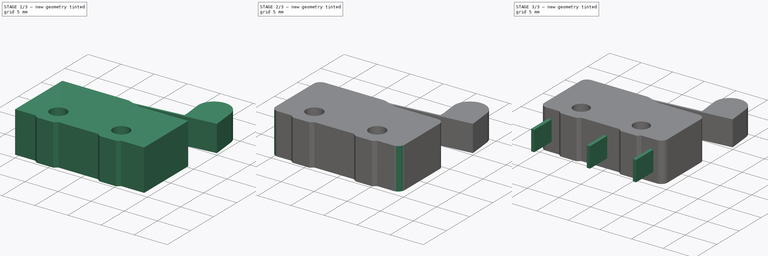
[diagram: build sequence overview — one tinted view per stage of 3, left to right]
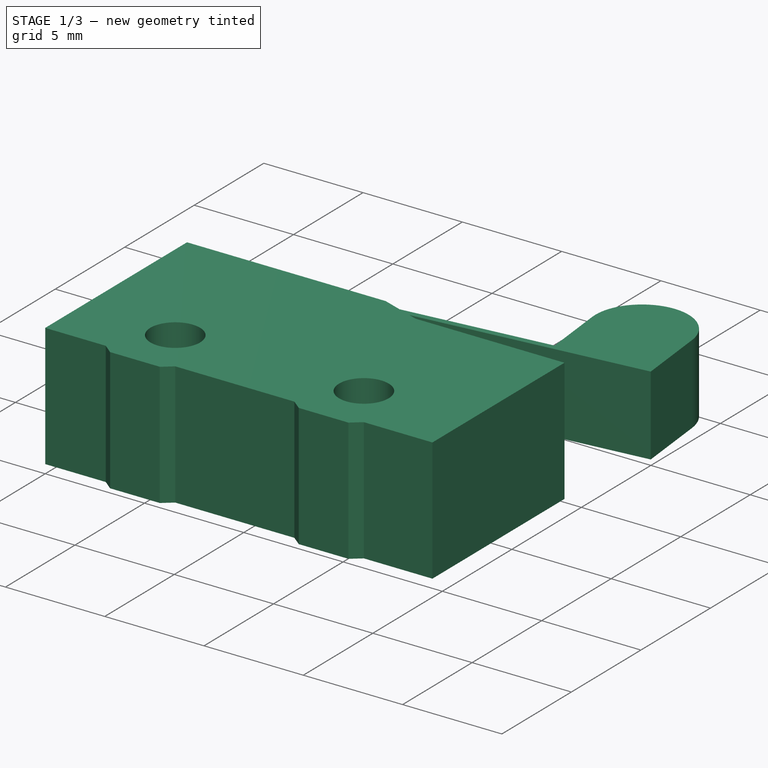
[diagram: stage 1 of 3 — iso view after this stage's code; geometry added in this stage tinted green]
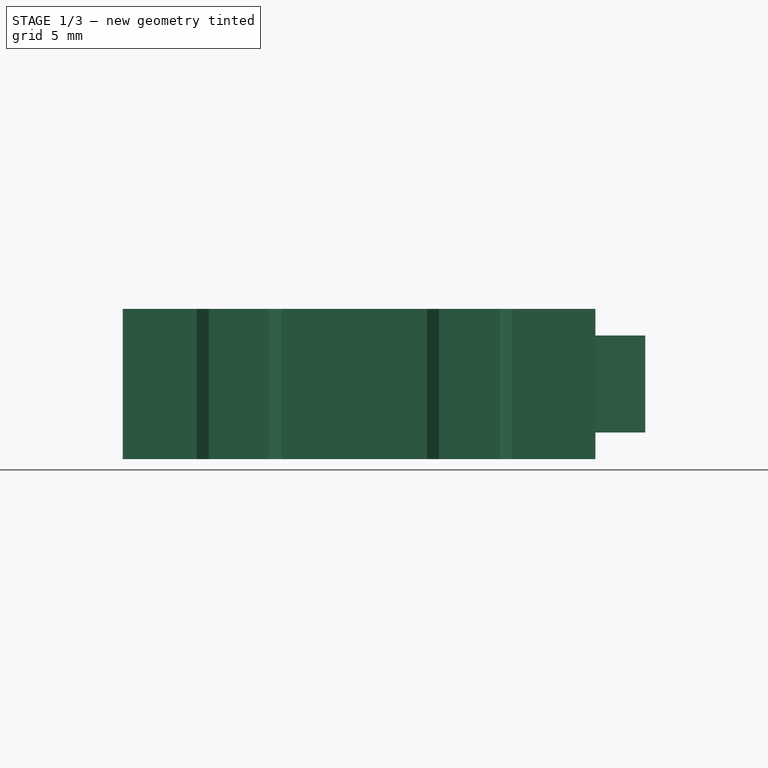
[diagram: stage 1 of 3 — front view after this stage's code; geometry added in this stage tinted green]
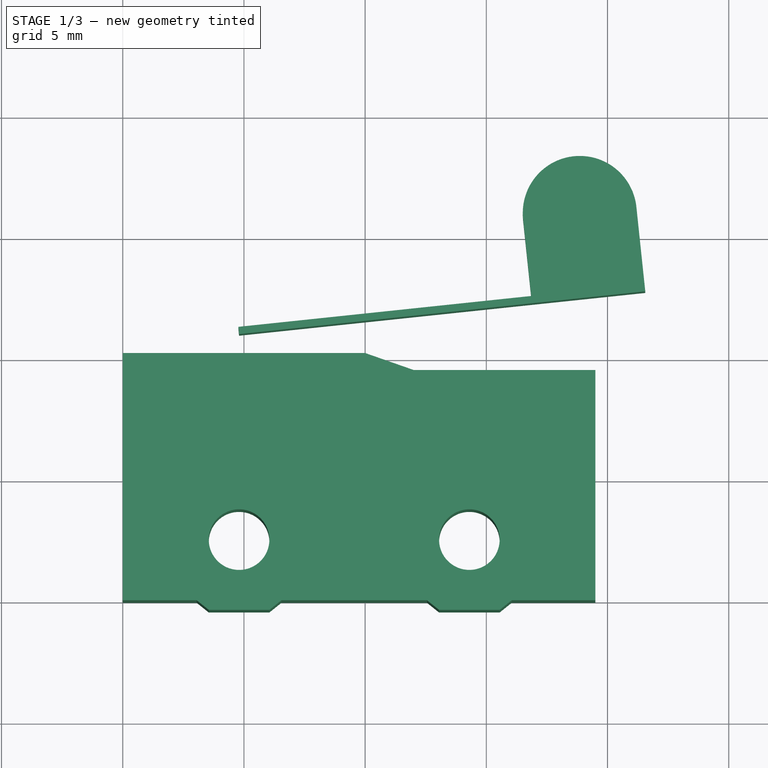
[diagram: stage 1 of 3 — top view after this stage's code; geometry added in this stage tinted green]
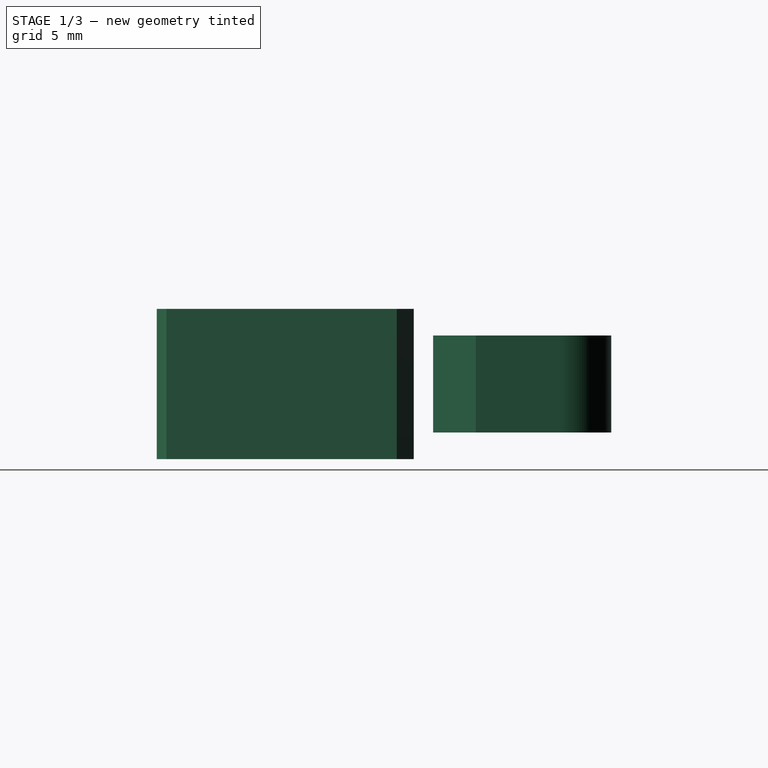
[diagram: stage 1 of 3 — right view after this stage's code; geometry added in this stage tinted green]
FCSTD DOCUMENT  (FreeCAD 0.16R6706 (Git))
Label: switch_SS0505
License: CreativeCommons Attribution-ShareAlike
LicenseURL: http://creativecommons.org/licenses/by-sa/4.0/
objects: Sketcher::SketchObject×3, PartDesign::Pad×3, PartDesign::Fillet×1, Part::MultiFuse×1
note: 11 computed .brp shape members not serialized (recipe doc carries the construction recipe); baked Part::Feature solids carry a one-line shape summary decoded from their .brp

FEATURE [Sketcher::SketchObject] Sketch  label="Sketch-main"
  sketch-geometry (20):
    g0: LineSegment StartX=0 StartY=0 StartZ=0 EndX=3.05 EndY=0 EndZ=0
    g1: LineSegment StartX=3.05 StartY=0 StartZ=0 EndX=3.55 EndY=-0.4 EndZ=0
    g2: LineSegment StartX=3.55 StartY=-0.4 StartZ=0 EndX=6.05 EndY=-0.4 EndZ=0
    g3: LineSegment StartX=6.05 StartY=-0.4 StartZ=0 EndX=6.55 EndY=0 EndZ=0
    g4: LineSegment StartX=6.55 StartY=0 StartZ=0 EndX=12.55 EndY=0 EndZ=0
    g5: LineSegment StartX=12.55 StartY=0 StartZ=0 EndX=13.05 EndY=-0.4 EndZ=0
    g6: LineSegment StartX=13.05 StartY=-0.4 StartZ=0 EndX=15.55 EndY=-0.4 EndZ=0
    g7: LineSegment StartX=15.55 StartY=-0.4 StartZ=0 EndX=16.05 EndY=0 EndZ=0
    g8: LineSegment StartX=16.05 StartY=0 StartZ=0 EndX=19.5 EndY=0 EndZ=0
    g9: LineSegment StartX=19.5 StartY=0 StartZ=0 EndX=19.5 EndY=9.5 EndZ=0
    g10: LineSegment StartX=19.5 StartY=9.5 StartZ=0 EndX=12 EndY=9.5 EndZ=0
    g11: LineSegment StartX=12 StartY=9.5 StartZ=0 EndX=10 EndY=10.2 EndZ=0
    g12: LineSegment StartX=10 StartY=10.2 StartZ=0 EndX=0 EndY=10.2 EndZ=0
    g13: LineSegment StartX=0 StartY=10.2 StartZ=0 EndX=0 EndY=0 EndZ=0
    g14: LineSegment [constr] StartX=14.3 StartY=-0.4 StartZ=0 EndX=14.3 EndY=2.5 EndZ=0
    g15: LineSegment [constr] StartX=4.8 StartY=-0.4 StartZ=0 EndX=4.8 EndY=2.5 EndZ=0
    g16: Circle CenterX=14.3 CenterY=2.5 CenterZ=0 NormalX=0 NormalY=0 NormalZ=1 Radius=1.25
    g17: Circle CenterX=4.8 CenterY=2.5 CenterZ=0 NormalX=0 NormalY=0 NormalZ=1 Radius=1.25
    g18: LineSegment [constr] StartX=12.55 StartY=0 StartZ=0 EndX=16.05 EndY=0 EndZ=0
    g19: LineSegment [constr] StartX=3.05 StartY=0 StartZ=0 EndX=6.55 EndY=0 EndZ=0
  constraints (54):
    c: Coincident(g-1,g0)
    c: PointOnObject(g0,g-1)
    c: Coincident(g0,g1)
    c: Coincident(g1,g2)
    c: Horizontal(g2)
    c: Coincident(g2,g3)
    c: Coincident(g3,g4)
    c: Horizontal(g4)
    c: Coincident(g4,g5)
    c: Coincident(g5,g6)
    c: Horizontal(g6)
    c: Coincident(g6,g7)
    c: Coincident(g7,g8)
    c: Horizontal(g8)
    c: Coincident(g8,g9)
    c: Vertical(g9)
    c: Coincident(g9,g10)
    c: Horizontal(g10)
    c: Coincident(g10,g11)
    c: Coincident(g11,g12)
    c: Horizontal(g12)
    c: Coincident(g12,g13)
    c: Coincident(g13,g0)
    c: Vertical(g13)
    c: DistanceX(g-1,g8) = 19.5
    c: PointOnObject(g8,g-1)
    c: PointOnObject(g2,g6)
    c: Equal(g2,g6)
    c: DistanceY(g-1,g12) = 10.2
    c: DistanceY(g8,g9) = 9.5
    c: PointOnObject(g14,g6)
    c: Symmetric(g5,g6,g14)
    c: PointOnObject(g15,g2)
    c: Symmetric(g2,g1,g15)
    c: Equal(g15,g14)
    c: DistanceY(g15,g15) = 2.9
    c: DistanceY(g0,g15) = 2.5
    c: DistanceX(g15,g14) = 9.5
    c: DistanceX(g14,g8) = 5.2
    c: Symmetric(g0,g3,g15)
    c: Symmetric(g4,g7,g14)
    c: Coincident(g16,g14)
    c: Coincident(g17,g15)
    c: Equal(g17,g16)
    c: Radius(g17) = 1.25
    c: DistanceX(g12,g11) = 10
    c: DistanceX(g10,g9) = 7.5
    c: DistanceX(g5,g6) = 2.5
    c: Coincident(g18,g4)
    c: Coincident(g18,g7)
    c: Coincident(g19,g0)
    c: Coincident(g19,g3)
    c: Equal(g19,g18)
    c: DistanceX(g18,g18) = 3.5
FEATURE [PartDesign::Pad] Pad  label="Pad-main"
  Length = 6.2
  Length2 = 100
  Midplane = true
  Sketch = -> Sketch
  Type = 0
FEATURE [Sketcher::SketchObject] Sketch002
  sketch-geometry (6):
    g0: LineSegment StartX=4.76857 StartY=11.2983 StartZ=0 EndX=16.8517 EndY=12.5714 EndZ=0
    g1: LineSegment StartX=16.8517 StartY=12.5714 StartZ=0 EndX=16.5164 EndY=15.7538 EndZ=0
    g2: ArcOfCircle CenterX=18.8535 CenterY=16 CenterZ=0 NormalX=0 NormalY=0 NormalZ=1 Radius=2.35 StartAngle=0.10497 EndAngle=3.24656
    g3: LineSegment StartX=21.1905 StartY=16.2462 StartZ=0 EndX=21.5573 EndY=12.7655 EndZ=0
    g4: LineSegment StartX=21.5573 StartY=12.7655 StartZ=0 EndX=4.8 EndY=11 EndZ=0
    g5: LineSegment StartX=4.8 StartY=11 StartZ=0 EndX=4.76857 EndY=11.2983 EndZ=0
  constraints (17):
    c: Coincident(g0,g1)
    c: Tangent(g1,g2) = 1.5708
    c: Tangent(g2,g3) = 1.5708
    c: Coincident(g3,g4)
    c: Coincident(g4,g5)
    c: Coincident(g5,g0)
    c: Parallel(g4,g0)
    c: Perpendicular(g4,g5)
    c: Perpendicular(g3,g4)
    c: Perpendicular(g0,g1)
    c: DistanceY(g-1,g4) = 11
    c: Distance(g5) = 0.3
    c: Distance(g2,g4) = 3.5
    c: Radius(g2) = 2.35
    c: Distance(g2,g5) = 14.5
    c: DistanceX(g-1,g4) = 4.8
    c: DistanceY(g-1,g2) = 16
FEATURE [PartDesign::Pad] Pad002
  Length = 4
  Length2 = 100
  Midplane = true
  Sketch = -> Sketch002
  Type = 0
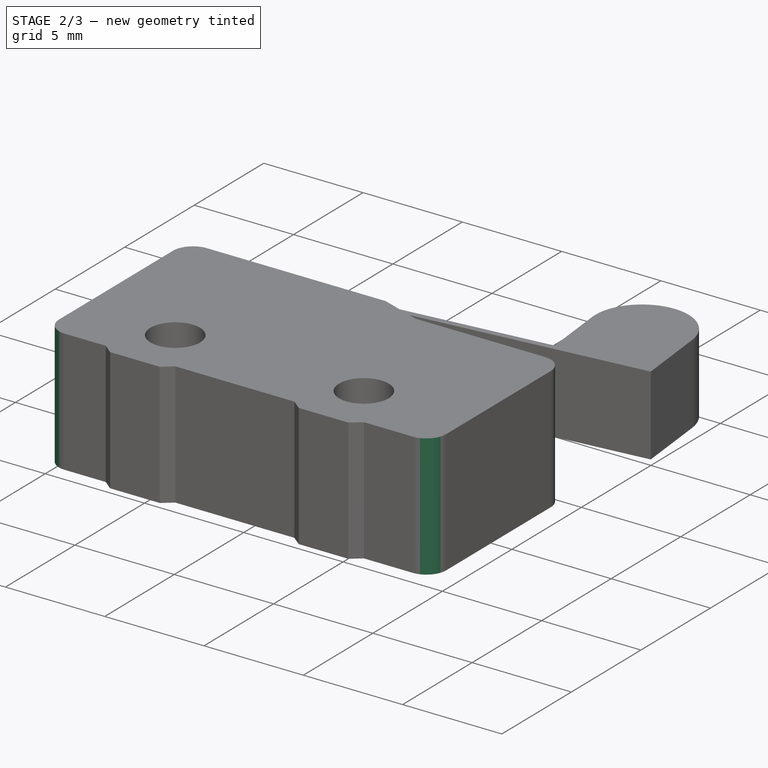
[diagram: stage 2 of 3 — iso view after this stage's code; geometry added in this stage tinted green]
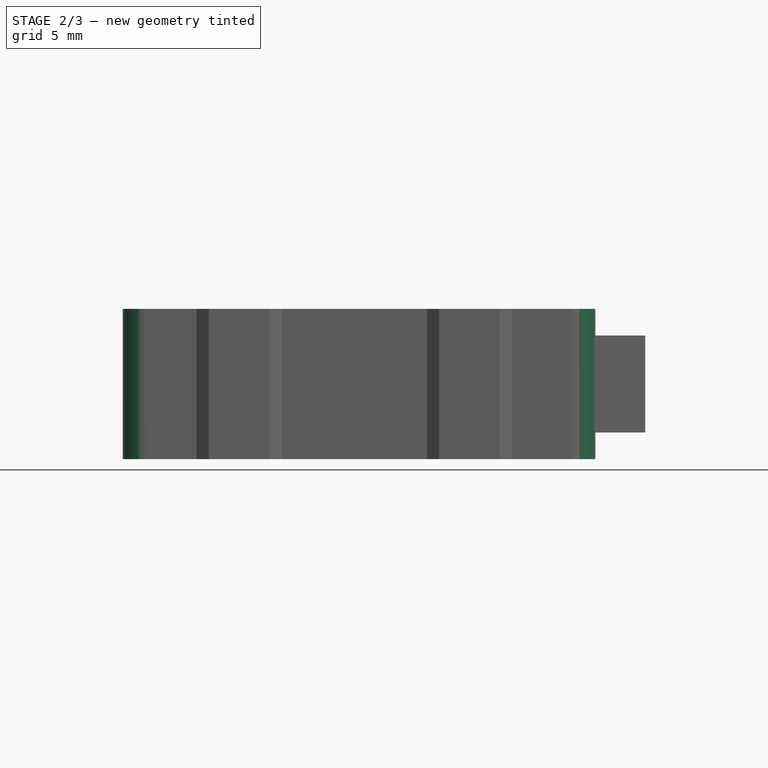
[diagram: stage 2 of 3 — front view after this stage's code; geometry added in this stage tinted green]
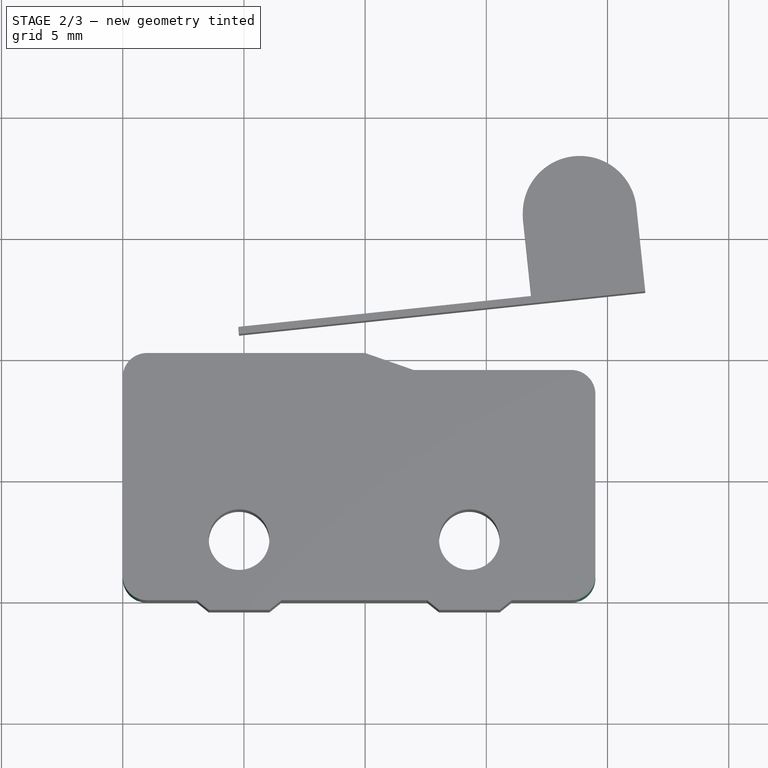
[diagram: stage 2 of 3 — top view after this stage's code; geometry added in this stage tinted green]
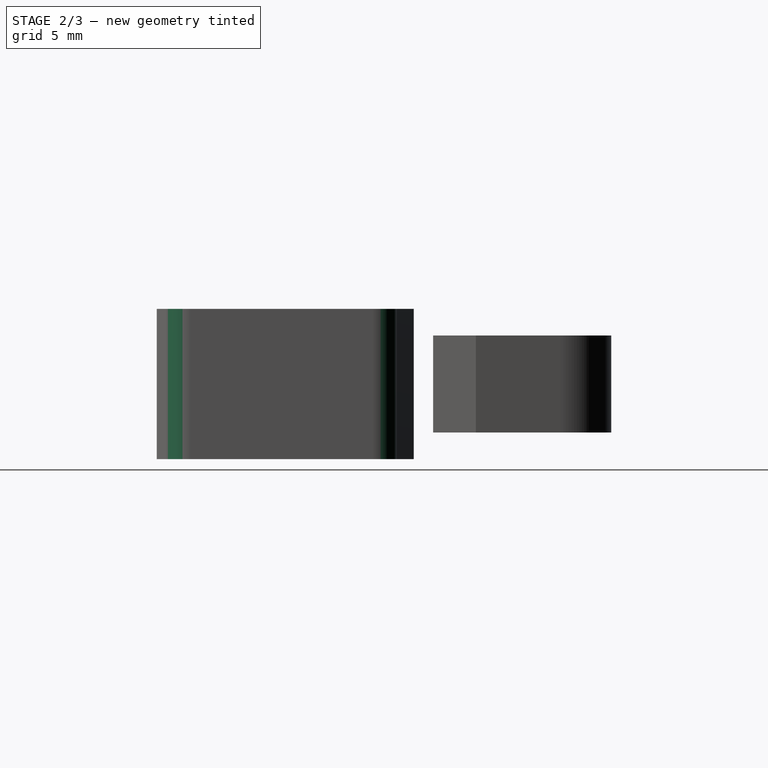
[diagram: stage 2 of 3 — right view after this stage's code; geometry added in this stage tinted green]
FEATURE [PartDesign::Fillet] Fillet
  Base = -> Pad [Edge29,Edge38,Edge1,Edge26]
  Radius = 1
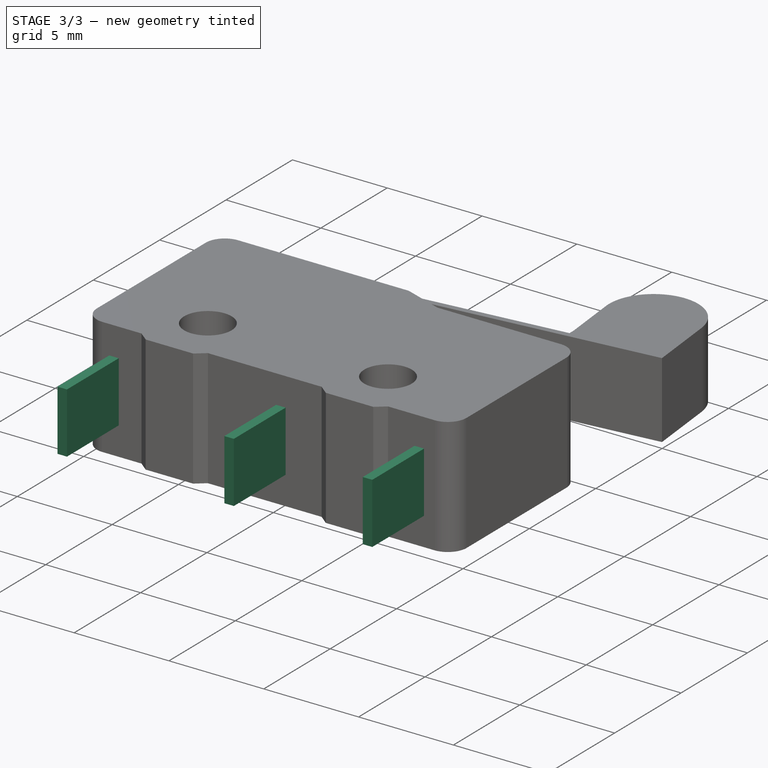
[diagram: stage 3 of 3 — iso view after this stage's code; geometry added in this stage tinted green]
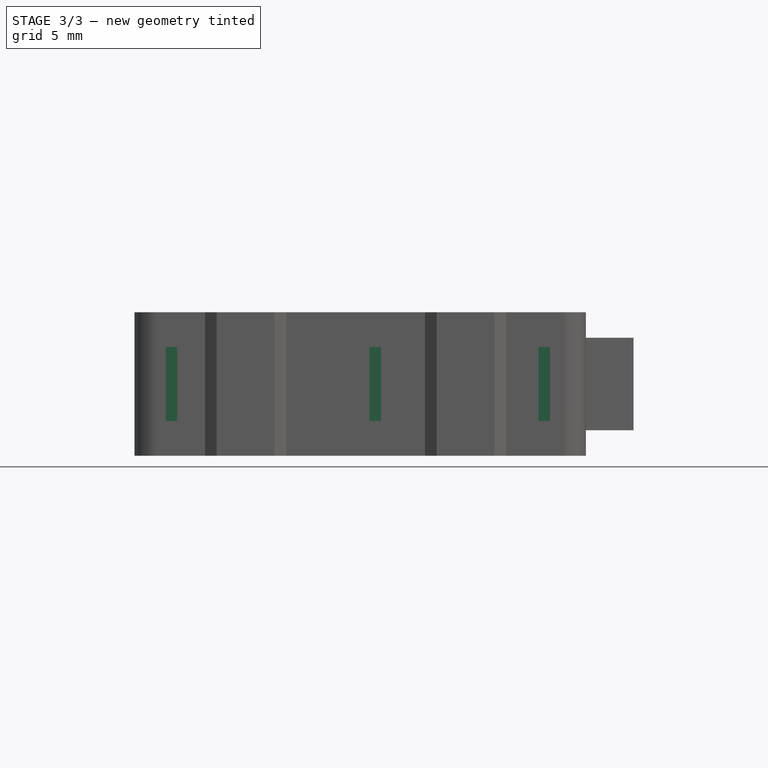
[diagram: stage 3 of 3 — front view after this stage's code; geometry added in this stage tinted green]
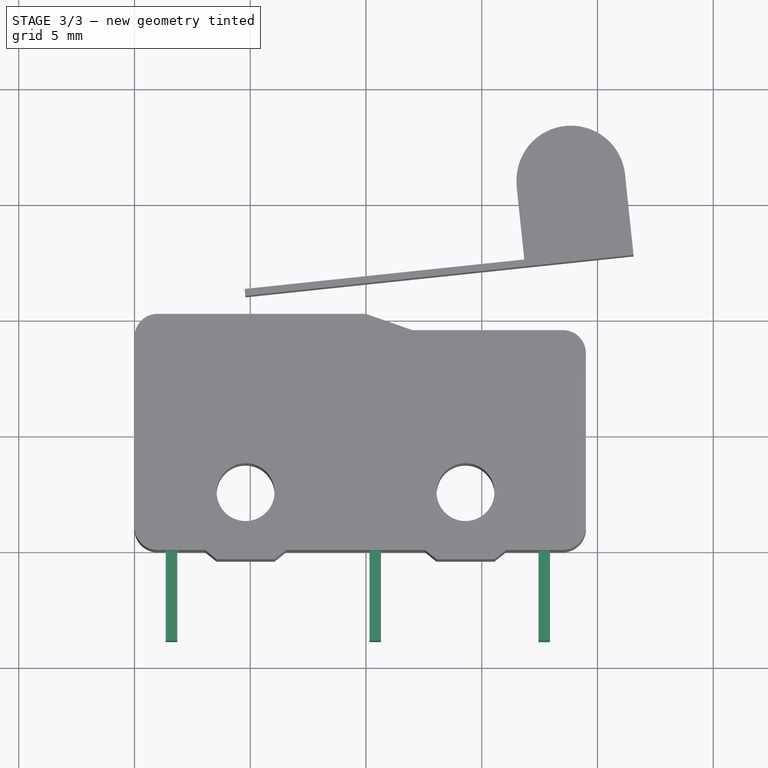
[diagram: stage 3 of 3 — top view after this stage's code; geometry added in this stage tinted green]
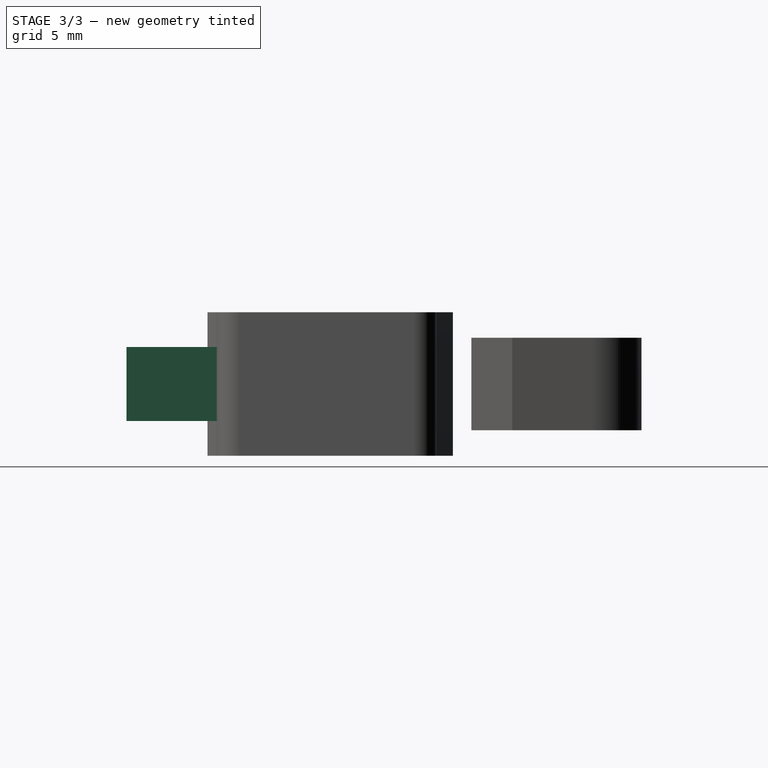
[diagram: stage 3 of 3 — right view after this stage's code; geometry added in this stage tinted green]
FEATURE [Sketcher::SketchObject] Sketch001  label="Sketch-contacts"
  sketch-geometry (12):
    g0: LineSegment StartX=17.45 StartY=0 StartZ=0 EndX=17.95 EndY=0 EndZ=0
    g1: LineSegment StartX=17.95 StartY=0 StartZ=0 EndX=17.95 EndY=-3.9 EndZ=0
    g2: LineSegment StartX=17.95 StartY=-3.9 StartZ=0 EndX=17.45 EndY=-3.9 EndZ=0
    g3: LineSegment StartX=17.45 StartY=-3.9 StartZ=0 EndX=17.45 EndY=0 EndZ=0
    g4: LineSegment StartX=10.15 StartY=0 StartZ=0 EndX=10.65 EndY=0 EndZ=0
    g5: LineSegment StartX=10.65 StartY=0 StartZ=0 EndX=10.65 EndY=-3.9 EndZ=0
    g6: LineSegment StartX=10.65 StartY=-3.9 StartZ=0 EndX=10.15 EndY=-3.9 EndZ=0
    g7: LineSegment StartX=10.15 StartY=-3.9 StartZ=0 EndX=10.15 EndY=0 EndZ=0
    g8: LineSegment StartX=1.35 StartY=0 StartZ=0 EndX=1.85 EndY=0 EndZ=0
    g9: LineSegment StartX=1.85 StartY=0 StartZ=0 EndX=1.85 EndY=-3.9 EndZ=0
    g10: LineSegment StartX=1.85 StartY=-3.9 StartZ=0 EndX=1.35 EndY=-3.9 EndZ=0
    g11: LineSegment StartX=1.35 StartY=-3.9 StartZ=0 EndX=1.35 EndY=0 EndZ=0
  constraints (36):
    c: Coincident(g0,g1)
    c: Coincident(g1,g2)
    c: Coincident(g2,g3)
    c: Coincident(g3,g0)
    c: Horizontal(g0)
    c: Horizontal(g2)
    c: Vertical(g1)
    c: Vertical(g3)
    c: PointOnObject(g0,g-1)
    c: Coincident(g4,g5)
    c: Coincident(g5,g6)
    c: Coincident(g6,g7)
    c: Coincident(g7,g4)
    c: Horizontal(g4)
    c: Horizontal(g6)
    c: Vertical(g5)
    c: Vertical(g7)
    c: PointOnObject(g4,g-1)
    c: Coincident(g8,g9)
    c: Coincident(g9,g10)
    c: Coincident(g10,g11)
    c: Coincident(g11,g8)
    c: Horizontal(g8)
    c: Horizontal(g10)
    c: Vertical(g9)
    c: Vertical(g11)
    c: PointOnObject(g8,g-1)
    c: Equal(g10,g6)
    c: Equal(g6,g2)
    c: Equal(g3,g5)
    c: Equal(g5,g9)
    c: DistanceX(g2,g1) = 0.5
    c: DistanceY(g1,g0) = 3.9
    c: DistanceX(g-1,g9) = 1.85
    c: DistanceX(g9,g5) = 8.8
    c: DistanceX(g5,g1) = 7.3
FEATURE [PartDesign::Pad] Pad001  label="Pad-contacts"
  Length = 3.2
  Length2 = 100
  Midplane = true
  Sketch = -> Sketch001
  Type = 0
FEATURE [Part::MultiFuse] Fusion
  Shapes = -> [Fillet,Pad002,Pad001]
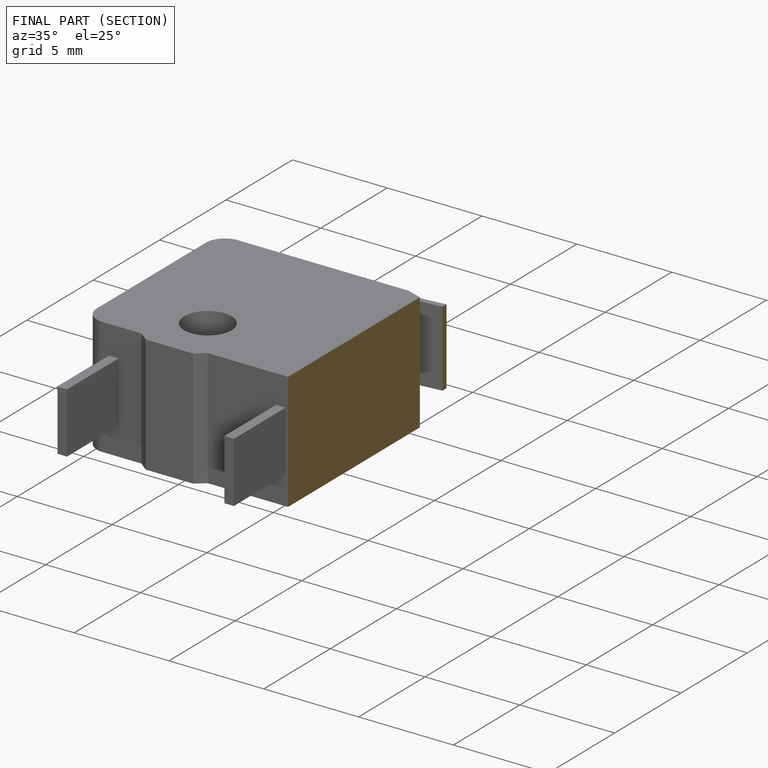
[diagram: finished part — half-section view (interior)]
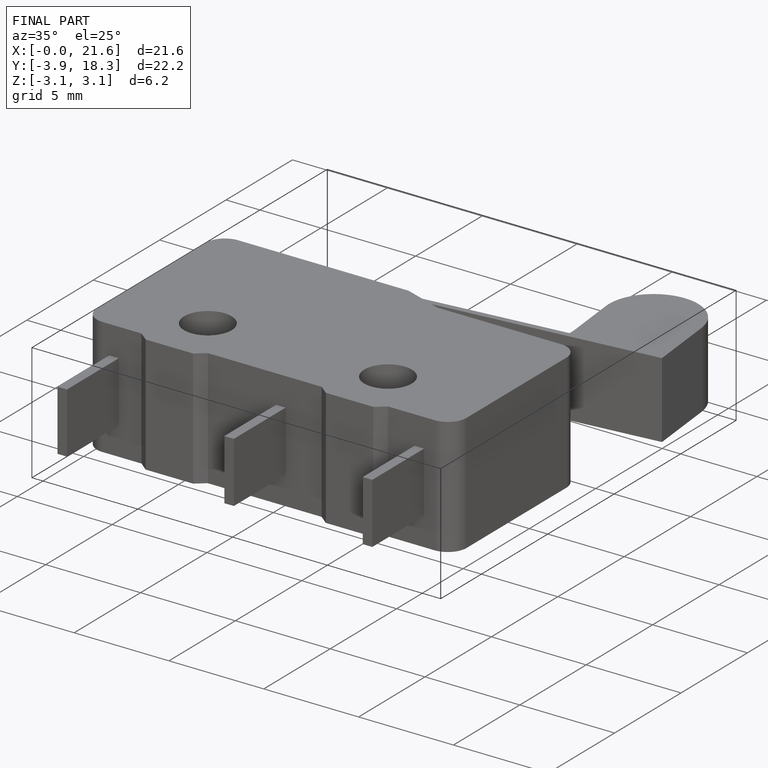
[diagram: finished part — iso view with bounding-box wireframe]
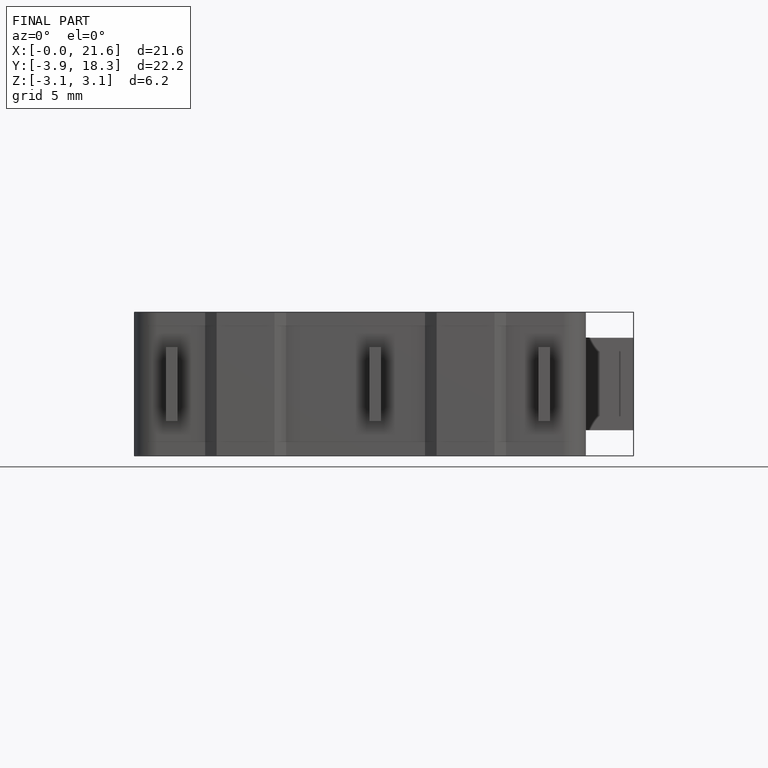
[diagram: finished part — front view with bounding-box wireframe]
